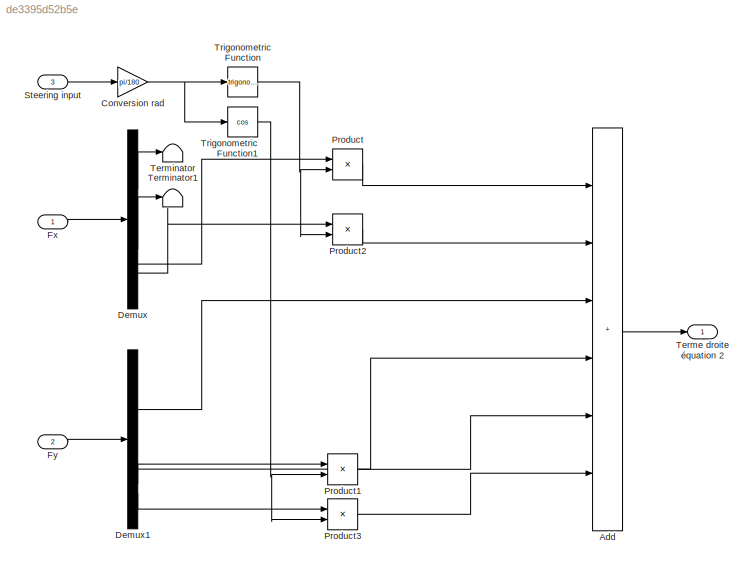
MODEL slx_de3395d52b5e
KIND model
CONFIG AbsTol = auto
CONFIG EnableMultiTasking = off
CONFIG FixedStep = Ts
CONFIG MaxStep = auto
CONFIG MinStep = auto
CONFIG RelTol = 1e-3
CONFIG SampleTimeConstraint = Unconstrained
CONFIG SolverName = FixedStepAuto
CONFIG StartTime = 0.0
CONFIG StopTime = 10.0
BLOCK [Sum] Add
  IconShape = rectangular
  Inputs = ++++++
BLOCK [Gain] Conversion rad
  Gain = pi/180
BLOCK [Demux] Demux
BLOCK [Demux] Demux1
BLOCK [Inport] Fx
BLOCK [Inport] Fy
  Port = 2
BLOCK [Product] Product
BLOCK [Product] Product1
BLOCK [Product] Product2
BLOCK [Product] Product3
BLOCK [Inport] Steering input
  Port = 3
BLOCK [Outport] Terme droite équation 2
BLOCK [Terminator] Terminator
BLOCK [Terminator] Terminator1
BLOCK [Trigonometry] Trigonometric Function
BLOCK [Trigonometry] Trigonometric Function1
  Operator = cos
LINE Add:1 -> Terme droite équation 2:1
NET Conversion rad:1 -> Trigonometric Function1:1, Trigonometric Function:1
LINE Demux1:1 -> Add:3
LINE Demux1:2 -> Add:4
LINE Demux1:3 -> Product1:1
LINE Demux1:4 -> Product3:1
LINE Demux:1 -> Terminator:1
LINE Demux:2 -> Terminator1:1
LINE Demux:3 -> Product:1
LINE Demux:4 -> Product2:1
LINE Fx:1 -> Demux:1
LINE Fy:1 -> Demux1:1
LINE Product1:1 -> Add:5
LINE Product2:1 -> Add:2
LINE Product3:1 -> Add:6
LINE Product:1 -> Add:1
LINE Steering input:1 -> Conversion rad:1
NET Trigonometric Function1:1 -> Product1:2, Product3:2
NET Trigonometric Function:1 -> Product2:2, Product:2
note: NET lines group one-source signal fan-out (src -> all destinations, sorted); 1:1 wires keep LINE
